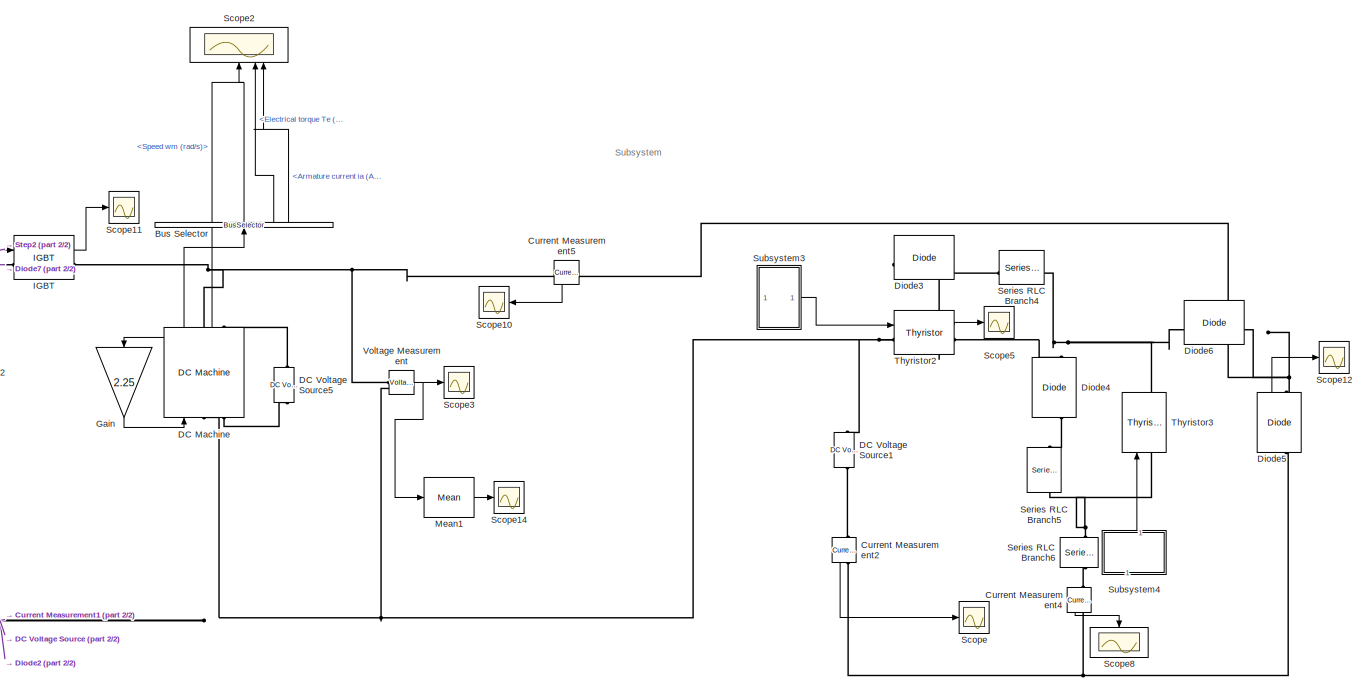
[diagram: root canvas - part 1/2, center side, full height]
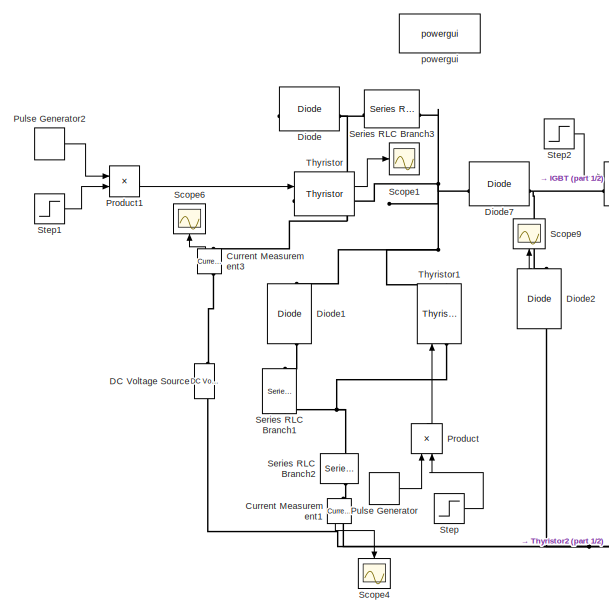
[diagram: root canvas - part 2/2, left side, full height]
MODEL slx_73cb1abf0fe9
KIND model
CONFIG AbsTol = auto
CONFIG EnableMultiTasking = off
CONFIG FixedStep = 0.01
CONFIG MaxStep = auto
CONFIG MinStep = auto
CONFIG RelTol = 1e-3
CONFIG SampleTimeConstraint = Unconstrained
CONFIG SolverName = VariableStepAuto
CONFIG StartTime = 0.0
CONFIG StopTime = 2
BLOCK [BusSelector] Bus Selector
  NameLocation = right
  OutputSignals = Speed wm (rad/s),Electrical torque Te (n m),Armature current ia (A)
BLOCK [Reference] Current Measurement1  REF=spsCurrentMeasurementLib/Current Measurement
  LibrarySourceBlock = sps_lib/Sensors and Measurements/Current Measurement
  NameLocation = left
  SourceBlock = spsCurrentMeasurementLib/Current Measurement
  SourceType = Current Measurement
  UserDataPersistent = on
BLOCK [Reference] Current Measurement2  REF=spsCurrentMeasurementLib/Current Measurement
  LibrarySourceBlock = sps_lib/Sensors and Measurements/Current Measurement
  NameLocation = left
  SourceBlock = spsCurrentMeasurementLib/Current Measurement
  SourceType = Current Measurement
  UserDataPersistent = on
BLOCK [Reference] Current Measurement3  REF=spsCurrentMeasurementLib/Current Measurement
  LibrarySourceBlock = sps_lib/Sensors and Measurements/Current Measurement
  NameLocation = right
  SourceBlock = spsCurrentMeasurementLib/Current Measurement
  SourceType = Current Measurement
  UserDataPersistent = on
BLOCK [Reference] Current Measurement4  REF=spsCurrentMeasurementLib/Current Measurement
  LibrarySourceBlock = sps_lib/Sensors and Measurements/Current Measurement
  NameLocation = left
  SourceBlock = spsCurrentMeasurementLib/Current Measurement
  SourceType = Current Measurement
  UserDataPersistent = on
BLOCK [Reference] Current Measurement5  REF=spsCurrentMeasurementLib/Current Measurement
  LibrarySourceBlock = sps_lib/Sensors and Measurements/Current Measurement
  NameLocation = top
  SourceBlock = spsCurrentMeasurementLib/Current Measurement
  SourceType = Current Measurement
  UserDataPersistent = on
BLOCK [Reference] DC Machine  REF=spsDCMachineLib/DC Machine
  LibrarySourceBlock = sps_lib/Electrical Machines/DC Machine
  NameLocation = right
  SourceBlock = spsDCMachineLib/DC Machine
  SourceType = DC machine
BLOCK [Reference] DC Voltage Source  REF=spsDCVoltageSourceLib/DC Voltage Source
  LibrarySourceBlock = sps_lib/Sources/DC Voltage Source
  SourceBlock = spsDCVoltageSourceLib/DC Voltage Source
  SourceType = DC Voltage Source
BLOCK [Reference] DC Voltage Source1  REF=spsDCVoltageSourceLib/DC Voltage Source
  LibrarySourceBlock = sps_lib/Sources/DC Voltage Source
  SourceBlock = spsDCVoltageSourceLib/DC Voltage Source
  SourceType = DC Voltage Source
BLOCK [Reference] DC Voltage Source5  REF=spsDCVoltageSourceLib/DC Voltage Source
  LibrarySourceBlock = sps_lib/Sources/DC Voltage Source
  NameLocation = top
  SourceBlock = spsDCVoltageSourceLib/DC Voltage Source
  SourceType = DC Voltage Source
BLOCK [Reference] Diode  REF=spsDiodeLib/Diode
  LibrarySourceBlock = sps_lib/Power Electronics/Diode
  NameLocation = top
  SourceBlock = spsDiodeLib/Diode
  SourceType = Diode
BLOCK [Reference] Diode1  REF=spsDiodeLib/Diode
  LibrarySourceBlock = sps_lib/Power Electronics/Diode
  NameLocation = left
  SourceBlock = spsDiodeLib/Diode
  SourceType = Diode
BLOCK [Reference] Diode2  REF=spsDiodeLib/Diode
  LibrarySourceBlock = sps_lib/Power Electronics/Diode
  NameLocation = right
  SourceBlock = spsDiodeLib/Diode
  SourceType = Diode
BLOCK [Reference] Diode3  REF=spsDiodeLib/Diode
  LibrarySourceBlock = sps_lib/Power Electronics/Diode
  NameLocation = top
  SourceBlock = spsDiodeLib/Diode
  SourceType = Diode
BLOCK [Reference] Diode4  REF=spsDiodeLib/Diode
  LibrarySourceBlock = sps_lib/Power Electronics/Diode
  NameLocation = left
  SourceBlock = spsDiodeLib/Diode
  SourceType = Diode
BLOCK [Reference] Diode5  REF=spsDiodeLib/Diode
  LibrarySourceBlock = sps_lib/Power Electronics/Diode
  NameLocation = right
  SourceBlock = spsDiodeLib/Diode
  SourceType = Diode
BLOCK [Reference] Diode6  REF=spsDiodeLib/Diode
  LibrarySourceBlock = sps_lib/Power Electronics/Diode
  SourceBlock = spsDiodeLib/Diode
  SourceType = Diode
BLOCK [Reference] Diode7  REF=spsDiodeLib/Diode
  LibrarySourceBlock = sps_lib/Power Electronics/Diode
  SourceBlock = spsDiodeLib/Diode
  SourceType = Diode
BLOCK [Gain] Gain
  Gain = 2.25
  NameLocation = left
BLOCK [Reference] IGBT  REF=spsIGBTLib/IGBT
  LibrarySourceBlock = sps_lib/Power Electronics/IGBT
  SourceBlock = spsIGBTLib/IGBT
  SourceType = IGBT
BLOCK [Reference] Mean1  REF=spsMeanLib/Mean
  LibrarySourceBlock = sps_lib/Sensors and Measurements/Mean
  SourceBlock = spsMeanLib/Mean
  SourceType = Mean
BLOCK [Product] Product
  NameLocation = right
BLOCK [Product] Product1
BLOCK [DiscretePulseGenerator] Pulse Generator
  Period = 1/500
  PhaseDelay = (0.6)*1/500
  PulseType = Time based
BLOCK [DiscretePulseGenerator] Pulse Generator2
  Period = 1/500
  PulseType = Time based
  PulseWidth = 2
BLOCK [Scope] Scope
  Floating = off
  NumInputPorts = 1
  ScopeSpecificationString = Simulink.scopes.TimeScopeBlockCfg('CurrentConfiguration', extmgr.ConfigurationSet(extmgr.Configuration('Core','General UI',true),extmgr.Configuration('Core','Source UI',true),extmgr.Configuration('Sources','WiredSimulink',true,'DataLoggingVariableName','ScopeData2'),extmgr.Configuration('Visuals','Time Domain',true,'SerializedDisplays',{struct('MinYLimReal','-63.63355','MaxYLimReal','132.68245','Y...<+1475ch>
BLOCK [Scope] Scope1
  Floating = off
  NumInputPorts = 1
  ScopeSpecificationString = Simulink.scopes.TimeScopeBlockCfg('CurrentConfiguration', extmgr.ConfigurationSet(extmgr.Configuration('Core','General UI',true),extmgr.Configuration('Core','Source UI',true),extmgr.Configuration('Sources','WiredSimulink',true,'DataLoggingVariableName','ScopeData1'),extmgr.Configuration('Visuals','Time Domain',true,'SerializedDisplays',{struct('MinYLimReal','-858.06474','MaxYLimReal','873.21845','...<+1476ch>
BLOCK [Scope] Scope10
  Floating = off
  NameLocation = top
  NumInputPorts = 1
  ScopeSpecificationString = Simulink.scopes.TimeScopeBlockCfg('CurrentConfiguration', extmgr.ConfigurationSet(extmgr.Configuration('Core','General UI',true),extmgr.Configuration('Core','Source UI',true),extmgr.Configuration('Sources','WiredSimulink',true,'DataLoggingVariableName','ScopeData1'),extmgr.Configuration('Visuals','Time Domain',true,'SerializedDisplays',{struct('MinYLimReal','-1.56173','MaxYLimReal','11.50983','YLa...<+1429ch>
BLOCK [Scope] Scope11
  Floating = off
  NumInputPorts = 1
  ScopeSpecificationString = Simulink.scopes.TimeScopeBlockCfg('CurrentConfiguration', extmgr.ConfigurationSet(extmgr.Configuration('Core','General UI',true),extmgr.Configuration('Core','Source UI',true),extmgr.Configuration('Sources','WiredSimulink',true,'DataLoggingVariableName','ScopeData1'),extmgr.Configuration('Visuals','Time Domain',true,'SerializedDisplays',{struct('MinYLimReal','-630.18691','MaxYLimReal','276.89878','...<+1524ch>
BLOCK [Scope] Scope12
  Floating = off
  NumInputPorts = 1
  ScopeSpecificationString = Simulink.scopes.TimeScopeBlockCfg('CurrentConfiguration', extmgr.ConfigurationSet(extmgr.Configuration('Core','General UI',true),extmgr.Configuration('Core','Source UI',true),extmgr.Configuration('Sources','WiredSimulink',true,'DataLoggingVariableName','ScopeData3'),extmgr.Configuration('Visuals','Time Domain',true,'SerializedDisplays',{struct('MinYLimReal','-68.57387','MaxYLimReal','91.53568','YL...<+1568ch>
BLOCK [Scope] Scope14
  Floating = off
  NumInputPorts = 1
  ScopeSpecificationString = Simulink.scopes.TimeScopeBlockCfg('CurrentConfiguration', extmgr.ConfigurationSet(extmgr.Configuration('Core','General UI',true),extmgr.Configuration('Core','Source UI',true),extmgr.Configuration('Sources','WiredSimulink',true,'DataLoggingVariableName','ScopeData4'),extmgr.Configuration('Visuals','Time Domain',true,'SerializedDisplays',{struct('MinYLimReal','-81.42438','MaxYLimReal','732.7941','YL...<+1441ch>
BLOCK [Scope] Scope2
  Floating = off
  NameLocation = right
  NumInputPorts = 3
  ScopeSpecificationString = Simulink.scopes.TimeScopeBlockCfg('CurrentConfiguration', extmgr.ConfigurationSet(extmgr.Configuration('Core','General UI',true),extmgr.Configuration('Core','Source UI',true),extmgr.Configuration('Sources','WiredSimulink',true,'DataLoggingVariableName','ScopeData7'),extmgr.Configuration('Visuals','Time Domain',true,'SerializedDisplays',{struct('MinYLimReal','-531.09411','MaxYLimReal','61.42582','Y...<+1517ch>
BLOCK [Scope] Scope3
  Floating = off
  NumInputPorts = 1
  ScopeSpecificationString = Simulink.scopes.TimeScopeBlockCfg('CurrentConfiguration', extmgr.ConfigurationSet(extmgr.Configuration('Core','General UI',true),extmgr.Configuration('Core','Source UI',true),extmgr.Configuration('Sources','WiredSimulink',true,'DataLoggingVariableName','ScopeData2'),extmgr.Configuration('Visuals','Time Domain',true,'SerializedDisplays',{struct('MinYLimReal','-174.89828','MaxYLimReal','1554.33019',...<+1467ch>
BLOCK [Scope] Scope4
  Floating = off
  NameLocation = left
  NumInputPorts = 1
  ScopeSpecificationString = Simulink.scopes.TimeScopeBlockCfg('CurrentConfiguration', extmgr.ConfigurationSet(extmgr.Configuration('Core','General UI',true),extmgr.Configuration('Core','Source UI',true),extmgr.Configuration('Sources','WiredSimulink',true,'DataLoggingVariableName','ScopeData3'),extmgr.Configuration('Visuals','Time Domain',true,'SerializedDisplays',{struct('MinYLimReal','-255.7711','MaxYLimReal','336.80518','Y...<+1437ch>
BLOCK [Scope] Scope5
  Floating = off
  NumInputPorts = 1
  ScopeSpecificationString = Simulink.scopes.TimeScopeBlockCfg('CurrentConfiguration', extmgr.ConfigurationSet(extmgr.Configuration('Core','General UI',true),extmgr.Configuration('Core','Source UI',true),extmgr.Configuration('Sources','WiredSimulink',true,'DataLoggingVariableName','ScopeData4'),extmgr.Configuration('Visuals','Time Domain',true,'SerializedDisplays',{struct('MinYLimReal','-170.71444','MaxYLimReal','203.8494','Y...<+1517ch>
BLOCK [Scope] Scope6
  Floating = off
  NameLocation = right
  NumInputPorts = 1
  ScopeSpecificationString = Simulink.scopes.TimeScopeBlockCfg('CurrentConfiguration', extmgr.ConfigurationSet(extmgr.Configuration('Core','General UI',true),extmgr.Configuration('Core','Source UI',true),extmgr.Configuration('Sources','WiredSimulink',true,'DataLoggingVariableName','ScopeData1'),extmgr.Configuration('Visuals','Time Domain',true,'SerializedDisplays',{struct('MinYLimReal','-21.00455','MaxYLimReal','20.99994','YL...<+1456ch>
BLOCK [Scope] Scope8
  Floating = off
  NameLocation = left
  NumInputPorts = 1
  ScopeSpecificationString = Simulink.scopes.TimeScopeBlockCfg('CurrentConfiguration', extmgr.ConfigurationSet(extmgr.Configuration('Core','General UI',true),extmgr.Configuration('Core','Source UI',true),extmgr.Configuration('Sources','WiredSimulink',true,'DataLoggingVariableName','ScopeData5'),extmgr.Configuration('Visuals','Time Domain',true,'SerializedDisplays',{struct('MinYLimReal','-25.31039','MaxYLimReal','97.7488','YLa...<+1477ch>
BLOCK [Scope] Scope9
  Floating = off
  NameLocation = right
  NumInputPorts = 1
  ScopeSpecificationString = Simulink.scopes.TimeScopeBlockCfg('CurrentConfiguration', extmgr.ConfigurationSet(extmgr.Configuration('Core','General UI',true),extmgr.Configuration('Core','Source UI',true),extmgr.Configuration('Sources','WiredSimulink',true,'DataLoggingVariableName','ScopeData1'),extmgr.Configuration('Visuals','Time Domain',true,'SerializedDisplays',{struct('MinYLimReal','-1583.58511','MaxYLimReal','428.26219',...<+1511ch>
BLOCK [Reference] Series RLC Branch1  REF=spsSeriesRLCBranchLib/Series RLC Branch
  LibrarySourceBlock = sps_lib/Passives/Series RLC Branch
  NameLocation = left
  SourceBlock = spsSeriesRLCBranchLib/Series RLC Branch
  SourceType = Series RLC Branch
BLOCK [Reference] Series RLC Branch2  REF=spsSeriesRLCBranchLib/Series RLC Branch
  LibrarySourceBlock = sps_lib/Passives/Series RLC Branch
  NameLocation = left
  SourceBlock = spsSeriesRLCBranchLib/Series RLC Branch
  SourceType = Series RLC Branch
BLOCK [Reference] Series RLC Branch3  REF=spsSeriesRLCBranchLib/Series RLC Branch
  LibrarySourceBlock = sps_lib/Passives/Series RLC Branch
  SourceBlock = spsSeriesRLCBranchLib/Series RLC Branch
  SourceType = Series RLC Branch
BLOCK [Reference] Series RLC Branch4  REF=spsSeriesRLCBranchLib/Series RLC Branch
  LibrarySourceBlock = sps_lib/Passives/Series RLC Branch
  NameLocation = top
  SourceBlock = spsSeriesRLCBranchLib/Series RLC Branch
  SourceType = Series RLC Branch
BLOCK [Reference] Series RLC Branch5  REF=spsSeriesRLCBranchLib/Series RLC Branch
  LibrarySourceBlock = sps_lib/Passives/Series RLC Branch
  NameLocation = left
  SourceBlock = spsSeriesRLCBranchLib/Series RLC Branch
  SourceType = Series RLC Branch
BLOCK [Reference] Series RLC Branch6  REF=spsSeriesRLCBranchLib/Series RLC Branch
  LibrarySourceBlock = sps_lib/Passives/Series RLC Branch
  NameLocation = left
  SourceBlock = spsSeriesRLCBranchLib/Series RLC Branch
  SourceType = Series RLC Branch
BLOCK [Step] Step
  After = 0
  Before = 1
  SampleTime = 0
  Time = 0.75
BLOCK [Step] Step1
  After = 0
  Before = 1
  SampleTime = 0
  Time = 0.75
BLOCK [Step] Step2
  After = 0
  Before = 1
  SampleTime = 0
  Time = 0.75
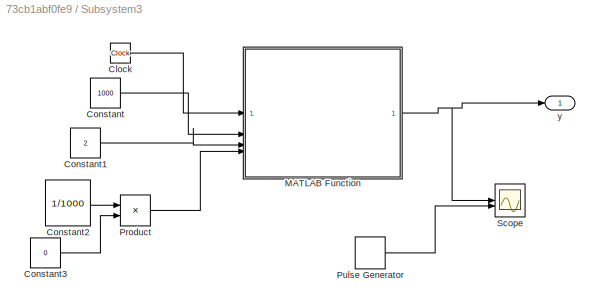
BLOCK [SubSystem] Subsystem3
BLOCK [Clock] Subsystem3/Clock
BLOCK [Constant] Subsystem3/Constant
  Value = 1000
BLOCK [Constant] Subsystem3/Constant1
  Value = 2
BLOCK [Constant] Subsystem3/Constant2
  Value = 1/1000
BLOCK [Constant] Subsystem3/Constant3
  Value = 0
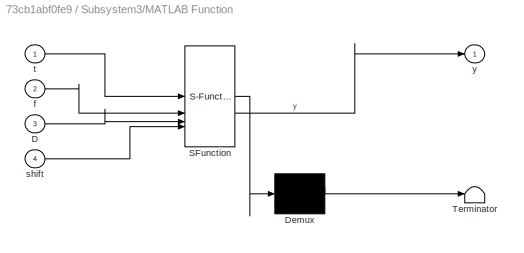
BLOCK [SubSystem] Subsystem3/MATLAB Function
  ErrorFcn = Stateflow.Translate.translate
  LibrarySourceBlock = simulink/User-Defined\nFunctions/MATLAB Function
  PermitHierarchicalResolution = ExplicitOnly
  SFBlockType = MATLAB Function
  TreatAsAtomicUnit = on
BLOCK [Demux] Subsystem3/MATLAB Function/ Demux 
  Outputs = 1
BLOCK [S-Function] Subsystem3/MATLAB Function/ SFunction 
  EnableBusSupport = on
  FunctionName = sf_sfun
  PortCounts = [4 2]
  SFcnIsStateOwnerBlock = off
  SFunctionDeploymentMode = off
  Tag = Stateflow S-Function 3
BLOCK [Terminator] Subsystem3/MATLAB Function/ Terminator 
BLOCK [Inport] Subsystem3/MATLAB Function/D
  Port = 3
BLOCK [Inport] Subsystem3/MATLAB Function/f
  Port = 2
BLOCK [Inport] Subsystem3/MATLAB Function/shift
  Port = 4
BLOCK [Inport] Subsystem3/MATLAB Function/t
BLOCK [Outport] Subsystem3/MATLAB Function/y
BLOCK [Product] Subsystem3/Product
BLOCK [DiscretePulseGenerator] Subsystem3/Pulse Generator
  Period = 1/1000
  PulseType = Time based
  PulseWidth = 5
BLOCK [Scope] Subsystem3/Scope
  Floating = off
  NumInputPorts = 2
  ScopeSpecificationString = Simulink.scopes.TimeScopeBlockCfg('CurrentConfiguration', extmgr.ConfigurationSet(extmgr.Configuration('Core','General UI',true),extmgr.Configuration('Core','Source UI',true),extmgr.Configuration('Sources','WiredSimulink',true,'DataLoggingVariableName','ScopeData1'),extmgr.Configuration('Visuals','Time Domain',true,'SerializedDisplays',{struct('MinYLimReal','-0.125','MaxYLimReal','1.125','YLabelRe...<+1969ch>
BLOCK [Outport] Subsystem3/y
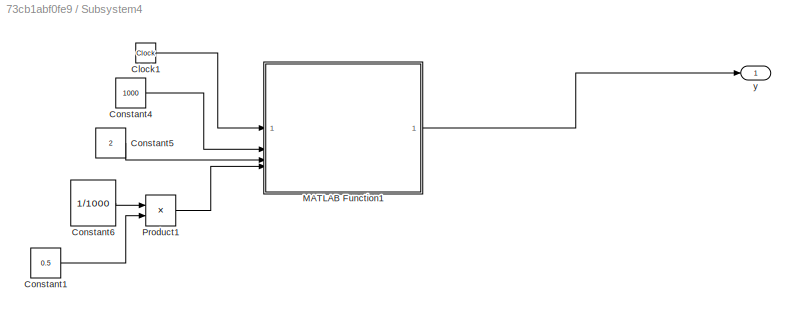
BLOCK [SubSystem] Subsystem4
  NameLocation = right
BLOCK [Clock] Subsystem4/Clock1
BLOCK [Constant] Subsystem4/Constant1
  Value = 0.5
BLOCK [Constant] Subsystem4/Constant4
  Value = 1000
BLOCK [Constant] Subsystem4/Constant5
  Value = 2
BLOCK [Constant] Subsystem4/Constant6
  Value = 1/1000
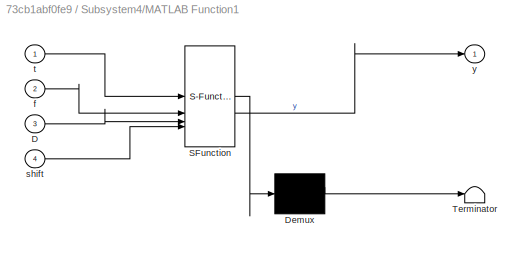
BLOCK [SubSystem] Subsystem4/MATLAB Function1
  ErrorFcn = Stateflow.Translate.translate
  LibrarySourceBlock = simulink/User-Defined\nFunctions/MATLAB Function
  PermitHierarchicalResolution = ExplicitOnly
  SFBlockType = MATLAB Function
  TreatAsAtomicUnit = on
BLOCK [Demux] Subsystem4/MATLAB Function1/ Demux 
  Outputs = 1
BLOCK [S-Function] Subsystem4/MATLAB Function1/ SFunction 
  EnableBusSupport = on
  FunctionName = sf_sfun
  PortCounts = [4 2]
  SFcnIsStateOwnerBlock = off
  SFunctionDeploymentMode = off
  Tag = Stateflow S-Function 4
BLOCK [Terminator] Subsystem4/MATLAB Function1/ Terminator 
BLOCK [Inport] Subsystem4/MATLAB Function1/D
  Port = 3
BLOCK [Inport] Subsystem4/MATLAB Function1/f
  Port = 2
BLOCK [Inport] Subsystem4/MATLAB Function1/shift
  Port = 4
BLOCK [Inport] Subsystem4/MATLAB Function1/t
BLOCK [Outport] Subsystem4/MATLAB Function1/y
BLOCK [Product] Subsystem4/Product1
BLOCK [Outport] Subsystem4/y
BLOCK [Reference] Thyristor  REF=spsThyristorLib/Thyristor
  LibrarySourceBlock = sps_lib/Power Electronics/Thyristor
  SourceBlock = spsThyristorLib/Thyristor
  SourceType = Thyristor
BLOCK [Reference] Thyristor1  REF=spsThyristorLib/Thyristor
  LibrarySourceBlock = sps_lib/Power Electronics/Thyristor
  NameLocation = right
  SourceBlock = spsThyristorLib/Thyristor
  SourceType = Thyristor
BLOCK [Reference] Thyristor2  REF=spsThyristorLib/Thyristor
  LibrarySourceBlock = sps_lib/Power Electronics/Thyristor
  SourceBlock = spsThyristorLib/Thyristor
  SourceType = Thyristor
BLOCK [Reference] Thyristor3  REF=spsThyristorLib/Thyristor
  LibrarySourceBlock = sps_lib/Power Electronics/Thyristor
  NameLocation = right
  SourceBlock = spsThyristorLib/Thyristor
  SourceType = Thyristor
BLOCK [Reference] Voltage Measurement  REF=spsVoltageMeasurementLib/Voltage Measurement
  LibrarySourceBlock = sps_lib/Sensors and Measurements/Voltage Measurement
  SourceBlock = spsVoltageMeasurementLib/Voltage Measurement
  SourceType = Voltage Measurement
  UserDataPersistent = on
BLOCK [Reference] powergui  REF=spspowerguiLib/powergui
  Priority = 1
  SourceBlock = spspowerguiLib/powergui
  SourceType = PSB option menu block
ANNOTATION (root): Subsystem
NET Bus Selector:1 -> Gain:1, Scope2:1
LINE Bus Selector:2 -> Scope2:2
LINE Bus Selector:3 -> Scope2:3
LINE Current Measurement1:1 -> Scope4:1
LINE Current Measurement2:1 -> Scope:1
LINE Current Measurement3:1 -> Scope6:1
LINE Current Measurement4:1 -> Scope8:1
LINE Current Measurement5:1 -> Scope10:1
LINE DC Machine:1 -> Bus Selector:1
LINE Diode2:1 -> Scope9:1
LINE Diode5:1 -> Scope12:1
LINE Gain:1 -> DC Machine:1
LINE IGBT:1 -> Scope11:1
LINE Mean1:1 -> Scope14:1
LINE Product1:1 -> Thyristor:1
LINE Product:1 -> Thyristor1:1
LINE Pulse Generator2:1 -> Product1:1
LINE Pulse Generator:1 -> Product:1
LINE Step1:1 -> Product1:2
LINE Step2:1 -> IGBT:1
LINE Step:1 -> Product:2
LINE Subsystem3/Clock:1 -> Subsystem3/MATLAB Function:1
LINE Subsystem3/Constant1:1 -> Subsystem3/MATLAB Function:3
LINE Subsystem3/Constant2:1 -> Subsystem3/Product:1
LINE Subsystem3/Constant3:1 -> Subsystem3/Product:2
LINE Subsystem3/Constant:1 -> Subsystem3/MATLAB Function:2
NET Subsystem3/MATLAB Function:1 -> Subsystem3/Scope:1, Subsystem3/y:1
LINE Subsystem3/Product:1 -> Subsystem3/MATLAB Function:4
LINE Subsystem3/Pulse Generator:1 -> Subsystem3/Scope:2
LINE Subsystem3:1 -> Thyristor2:1
LINE Subsystem4/Clock1:1 -> Subsystem4/MATLAB Function1:1
LINE Subsystem4/Constant1:1 -> Subsystem4/Product1:2
LINE Subsystem4/Constant4:1 -> Subsystem4/MATLAB Function1:2
LINE Subsystem4/Constant5:1 -> Subsystem4/MATLAB Function1:3
LINE Subsystem4/Constant6:1 -> Subsystem4/Product1:1
LINE Subsystem4/MATLAB Function1:1 -> Subsystem4/y:1
LINE Subsystem4/Product1:1 -> Subsystem4/MATLAB Function1:4
LINE Subsystem4:1 -> Thyristor3:1
LINE Thyristor2:1 -> Scope5:1
LINE Thyristor:1 -> Scope1:1
NET Voltage Measurement:1 -> Mean1:1, Scope3:1
PLINE Current Measurement1:LConn1 -- Series RLC Branch2:RConn1
PNET net1: Current Measurement1:RConn1 -- DC Machine:LConn1 -- DC Voltage Source1:RConn1 -- DC Voltage Source:LConn1 -- Diode2:LConn1 -- Diode3:RConn1 -- Thyristor2:LConn1 -- Voltage Measurement:LConn2
PLINE Current Measurement2:LConn1 -- DC Voltage Source1:LConn1
PNET net2: Current Measurement2:RConn1 -- Current Measurement4:RConn1 -- Diode5:LConn1
PLINE Current Measurement3:LConn1 -- DC Voltage Source:RConn1
PNET net3: Current Measurement3:RConn1 -- Diode:RConn1 -- Thyristor:LConn1
PLINE Current Measurement4:LConn1 -- Series RLC Branch6:RConn1
PNET net4: Current Measurement5:LConn1 -- Diode5:RConn1 -- Diode6:RConn1
PNET net5: Current Measurement5:RConn1 -- DC Machine:RConn1 -- IGBT:RConn1 -- Voltage Measurement:LConn1
PLINE DC Machine:LConn2 -- DC Voltage Source5:RConn1
PLINE DC Machine:RConn2 -- DC Voltage Source5:LConn1
PNET net6: Diode1:LConn1 -- Diode7:LConn1 -- Series RLC Branch3:RConn1 -- Thyristor1:RConn1 -- Thyristor:RConn1
PLINE Diode1:RConn1 -- Series RLC Branch1:LConn1
PNET net7: Diode2:RConn1 -- Diode7:RConn1 -- IGBT:LConn1
PLINE Diode3:LConn1 -- Series RLC Branch4:RConn1
PNET net8: Diode4:LConn1 -- Diode6:LConn1 -- Series RLC Branch4:LConn1 -- Thyristor2:RConn1 -- Thyristor3:RConn1
PLINE Diode4:RConn1 -- Series RLC Branch5:LConn1
PLINE Diode:LConn1 -- Series RLC Branch3:LConn1
PNET net9: Series RLC Branch1:RConn1 -- Series RLC Branch2:LConn1 -- Thyristor1:LConn1
PNET net10: Series RLC Branch5:RConn1 -- Series RLC Branch6:LConn1 -- Thyristor3:LConn1
note: NET lines group one-source signal fan-out (src -> all destinations, sorted); 1:1 wires keep LINE; PNET lines group multi-terminal physical nets as a canonical sorted terminal list (undirected conserving connections); 2-terminal nets keep the pairwise PLINE form
CHART Subsystem3/MATLAB Function states=1 transitions=1
  STATE_LABEL 'eML_blk_kernel()'
  STATE_LABEL 'SCRIPT:\nfunction y = fcn(t,f,D,shift)\nperiod = 1/f;\nduty=D/100;\nt_shift = t - shift;\n\n if t <= 0.75\n     y = false;\n else \n     y = mod(t_shift,period) < (duty*period);\n\n end\nend\n\n\n'
CHART Subsystem4/MATLAB Function1 states=1 transitions=1
  STATE_LABEL 'eML_blk_kernel()'
  STATE_LABEL 'SCRIPT:\nfunction y = fcn(t,f,D,shift)\nperiod = 1/f;\nduty=D/100;\nt_shift = t - shift;\nif t < 0.75\n    y = false;\n   \nelse \n    y = mod(t_shift,period) < (duty*period);\n    % y = false;\nend\nend\n\n\n'
CHART  states=0 transitions=0
CHART  states=0 transitions=0
